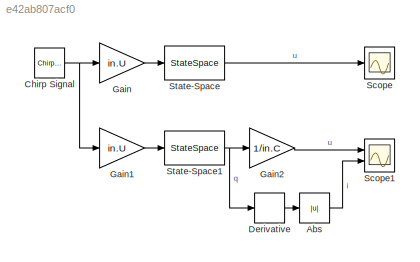
MODEL slx_e42ab807acf0
KIND model
BLOCK [Abs] Abs
  SaturateOnIntegerOverflow = off
BLOCK [Reference] Chirp Signal  REF=simulink/Sources/Chirp Signal
  Ports = [0, 1]
  SourceBlock = simulink/Sources/Chirp Signal
  SourceType = chirp
  T = param.tmax
  VectorParams1D = on
  f1 = freq.fmin
  f2 = freq.fmax
BLOCK [Derivative] Derivative
BLOCK [Gain] Gain
  Gain = in.U
  OutDataTypeStr = Inherit: Inherit via internal rule
  ParamDataTypeStr = Inherit: Inherit via internal rule
  SaturateOnIntegerOverflow = off
BLOCK [Gain] Gain1
  Gain = in.U
  OutDataTypeStr = Inherit: Inherit via internal rule
  ParamDataTypeStr = Inherit: Inherit via internal rule
  SaturateOnIntegerOverflow = off
BLOCK [Gain] Gain2
  Gain = 1/in.C
  OutDataTypeStr = Inherit: Inherit via internal rule
  ParamDataTypeStr = Inherit: Inherit via internal rule
  SaturateOnIntegerOverflow = off
BLOCK [Scope] Scope
  Floating = off
  LegendLocations = 0.94768     0.93896    0.032353     0.01872
  LimitDataPoints = off
  NumInputPorts = 1
  Ports = [1]
  ShowLegends = on
  YMax = 25
  YMin = -25
BLOCK [Scope] Scope1
  Floating = off
  LegendLocations = 0.94768     0.93896    0.032353     0.01872\n 0.9496      0.4624     0.03044     0.01872
  LimitDataPoints = off
  NumInputPorts = 2
  Ports = [2]
  SaveName = ScopeData1
  ShowLegends = on
  YMax = 5~5
  YMin = -5~-5
BLOCK [StateSpace] State-Space
  A = [-in.R/in.L -1/in.L;1/in.C 0]
  B = [1/in.L; 0]
  C = [0 1]
  D = [0]
  Ports = [1, 1]
  X0 = param.ic
BLOCK [StateSpace] State-Space1
  A = [-in.R/in.L -1/in.C;1/in.L 0]
  B = [1; 0]
  C = [0 1]
  D = [0]
  Ports = [1, 1]
  X0 = param.ic
LINE Abs:1 -> Scope1:2
NET Chirp Signal:1 -> Gain1:1, Gain:1
LINE Derivative:1 -> Abs:1
LINE Gain1:1 -> State-Space1:1
LINE Gain2:1 -> Scope1:1
LINE Gain:1 -> State-Space:1
NET State-Space1:1 -> Derivative:1, Gain2:1
LINE State-Space:1 -> Scope:1
note: NET lines group one-source signal fan-out (src -> all destinations, sorted); 1:1 wires keep LINE
